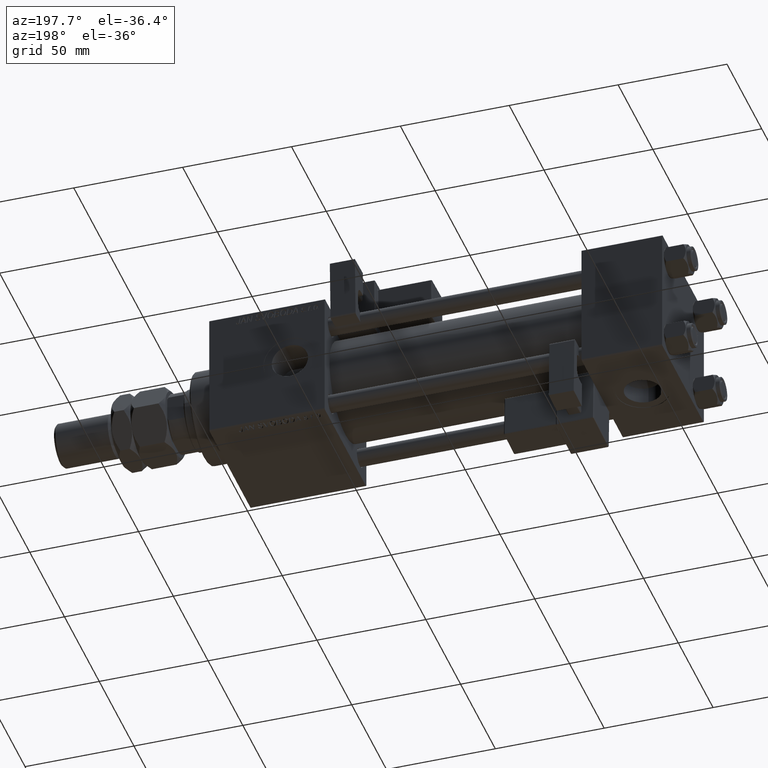
[diagram: clean part render]
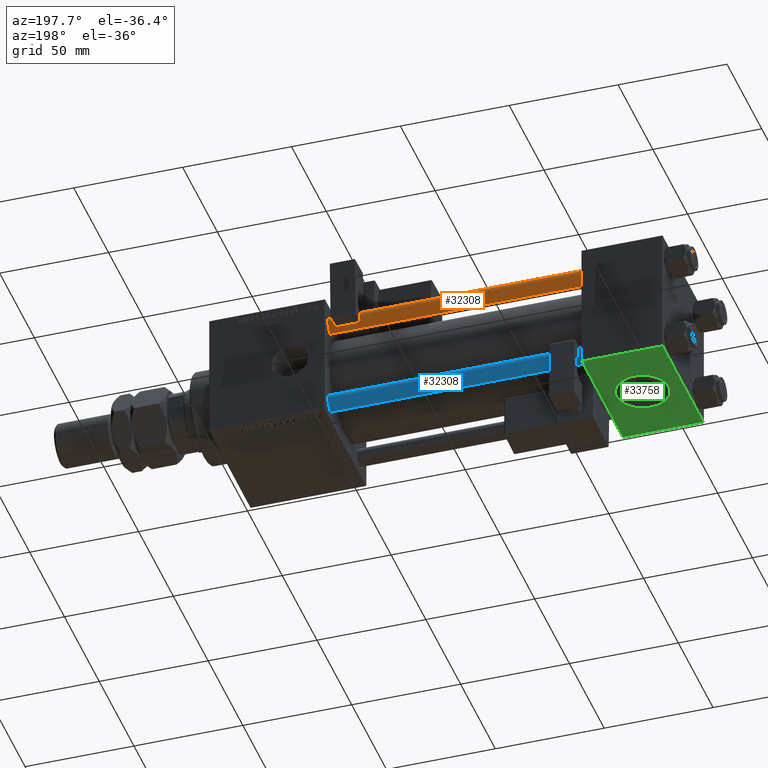
[diagram: same view with three faces highlighted in distinct colors, each labeled with its STEP entity id]
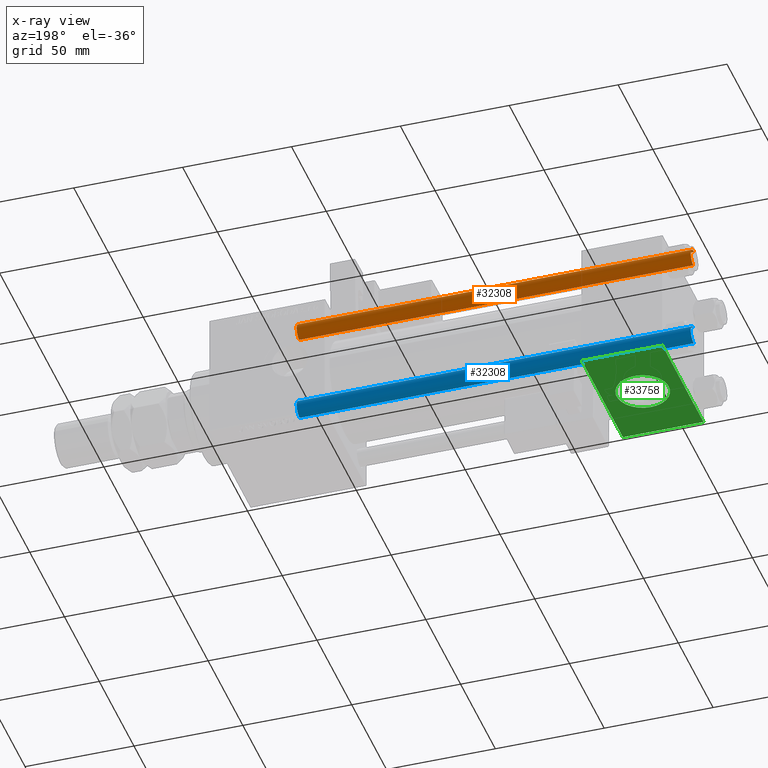
[diagram: x-ray of the same camera — body ghosted, the three highlighted faces saturated]
A machine part, auxiliary view with three faces highlighted in distinct colors.
The next image is the same camera in x-ray (body ghosted, the three faces saturated) — at least one of them is partly hidden behind the body in this view.
Their STEP definitions:

[orange] entity #32308 — the highlighted cylindrical surface (edge-blend (fillet) strip) has radius 4 mm, axis along (-1, 0, 0).
#306 = EDGE_CURVE ( 'NONE', #536, #24962, #49827, .T. ) ;
#536 = VERTEX_POINT ( 'NONE', #34840 ) ;
#3384 = DIRECTION ( 'NONE',  ( 1.000000000000000000, 0.000000000000000000, 0.000000000000000000 ) ) ;
#7775 = CIRCLE ( 'NONE', #46541, 4.000000000000000000 ) ;
#9680 = DIRECTION ( 'NONE',  ( -1.000000000000000000, 0.000000000000000000, 0.000000000000000000 ) ) ;
#10736 = CIRCLE ( 'NONE', #44079, 4.000000000000000000 ) ;
#13102 = DIRECTION ( 'NONE',  ( -0.000000000000000000, -0.000000000000000000, 1.000000000000000000 ) ) ;
#15064 = VERTEX_POINT ( 'NONE', #26403 ) ;
#16174 = EDGE_LOOP ( 'NONE', ( #26936, #31200, #36035, #23602 ) ) ;
#16819 = EDGE_CURVE ( 'NONE', #24962, #42858, #10736, .T. ) ;
#23602 = ORIENTED_EDGE ( 'NONE', *, *, #50609, .F. ) ;
#24412 = CARTESIAN_POINT ( 'NONE',  ( -4.000000000000000000, 0.000000000000000000, 0.4999999999999726885 ) ) ;
#24962 = VERTEX_POINT ( 'NONE', #35350 ) ;
#26403 = CARTESIAN_POINT ( 'NONE',  ( -4.000000000000000000, 0.000000000000000000, 181.5000000000000284 ) ) ;
#26655 = DIRECTION ( 'NONE',  ( 1.000000000000000000, 0.000000000000000000, 0.000000000000000000 ) ) ;
#26936 = ORIENTED_EDGE ( 'NONE', *, *, #49694, .T. ) ;
#29621 = DIRECTION ( 'NONE',  ( 0.000000000000000000, 0.000000000000000000, -1.000000000000000000 ) ) ;
#29630 = LINE ( 'NONE', #46284, #50199 ) ;
#30570 = FACE_OUTER_BOUND ( 'NONE', #16174, .T. ) ;
#31200 = ORIENTED_EDGE ( 'NONE', *, *, #306, .T. ) ;
#32308 = ADVANCED_FACE ( 'NONE', ( #30570 ), #44108, .T. ) ;
#34840 = CARTESIAN_POINT ( 'NONE',  ( 4.000000000000000000, 4.898587196589412829E-16, 181.5000000000000284 ) ) ;
#35350 = CARTESIAN_POINT ( 'NONE',  ( 4.000000000000000000, 4.898587196589412829E-16, 0.4999999999999726885 ) ) ;
#35390 = CARTESIAN_POINT ( 'NONE',  ( 0.000000000000000000, 0.000000000000000000, 0.4999999999999726885 ) ) ;
#36035 = ORIENTED_EDGE ( 'NONE', *, *, #16819, .T. ) ;
#39318 = DIRECTION ( 'NONE',  ( -0.000000000000000000, -0.000000000000000000, -1.000000000000000000 ) ) ;
#42606 = DIRECTION ( 'NONE',  ( -0.000000000000000000, -0.000000000000000000, -1.000000000000000000 ) ) ;
#42858 = VERTEX_POINT ( 'NONE', #24412 ) ;
#43000 = CARTESIAN_POINT ( 'NONE',  ( 0.000000000000000000, 0.000000000000000000, 182.0000000000000000 ) ) ;
#44079 = AXIS2_PLACEMENT_3D ( 'NONE', #35390, #13102, #26655 ) ;
#44108 = CYLINDRICAL_SURFACE ( 'NONE', #45500, 4.000000000000000000 ) ;
#45500 = AXIS2_PLACEMENT_3D ( 'NONE', #43000, #39318, #9680 ) ;
#45618 = CARTESIAN_POINT ( 'NONE',  ( 4.000000000000000000, 4.898587196589412829E-16, 182.0000000000000000 ) ) ;
#46008 = CARTESIAN_POINT ( 'NONE',  ( 0.000000000000000000, 0.000000000000000000, 181.5000000000000284 ) ) ;
#46284 = CARTESIAN_POINT ( 'NONE',  ( -4.000000000000000000, 0.000000000000000000, 182.0000000000000000 ) ) ;
#46541 = AXIS2_PLACEMENT_3D ( 'NONE', #46008, #29621, #3384 ) ;
#49694 = EDGE_CURVE ( 'NONE', #15064, #536, #7775, .T. ) ;
#49827 = LINE ( 'NONE', #45618, #50567 ) ;
#50199 = VECTOR ( 'NONE', #42606, 1000.000000000000000 ) ;
#50567 = VECTOR ( 'NONE', #50918, 1000.000000000000000 ) ;
#50609 = EDGE_CURVE ( 'NONE', #15064, #42858, #29630, .T. ) ;
#50918 = DIRECTION ( 'NONE',  ( -0.000000000000000000, -0.000000000000000000, -1.000000000000000000 ) ) ;

[blue] entity #32308 — the highlighted cylindrical surface (edge-blend (fillet) strip) has radius 4 mm, axis along (1, -0, 0).
#306 = EDGE_CURVE ( 'NONE', #536, #24962, #49827, .T. ) ;
#536 = VERTEX_POINT ( 'NONE', #34840 ) ;
#3384 = DIRECTION ( 'NONE',  ( 1.000000000000000000, 0.000000000000000000, 0.000000000000000000 ) ) ;
#7775 = CIRCLE ( 'NONE', #46541, 4.000000000000000000 ) ;
#9680 = DIRECTION ( 'NONE',  ( -1.000000000000000000, 0.000000000000000000, 0.000000000000000000 ) ) ;
#10736 = CIRCLE ( 'NONE', #44079, 4.000000000000000000 ) ;
#13102 = DIRECTION ( 'NONE',  ( -0.000000000000000000, -0.000000000000000000, 1.000000000000000000 ) ) ;
#15064 = VERTEX_POINT ( 'NONE', #26403 ) ;
#16174 = EDGE_LOOP ( 'NONE', ( #26936, #31200, #36035, #23602 ) ) ;
#16819 = EDGE_CURVE ( 'NONE', #24962, #42858, #10736, .T. ) ;
#23602 = ORIENTED_EDGE ( 'NONE', *, *, #50609, .F. ) ;
#24412 = CARTESIAN_POINT ( 'NONE',  ( -4.000000000000000000, 0.000000000000000000, 0.4999999999999726885 ) ) ;
#24962 = VERTEX_POINT ( 'NONE', #35350 ) ;
#26403 = CARTESIAN_POINT ( 'NONE',  ( -4.000000000000000000, 0.000000000000000000, 181.5000000000000284 ) ) ;
#26655 = DIRECTION ( 'NONE',  ( 1.000000000000000000, 0.000000000000000000, 0.000000000000000000 ) ) ;
#26936 = ORIENTED_EDGE ( 'NONE', *, *, #49694, .T. ) ;
#29621 = DIRECTION ( 'NONE',  ( 0.000000000000000000, 0.000000000000000000, -1.000000000000000000 ) ) ;
#29630 = LINE ( 'NONE', #46284, #50199 ) ;
#30570 = FACE_OUTER_BOUND ( 'NONE', #16174, .T. ) ;
#31200 = ORIENTED_EDGE ( 'NONE', *, *, #306, .T. ) ;
#32308 = ADVANCED_FACE ( 'NONE', ( #30570 ), #44108, .T. ) ;
#34840 = CARTESIAN_POINT ( 'NONE',  ( 4.000000000000000000, 4.898587196589412829E-16, 181.5000000000000284 ) ) ;
#35350 = CARTESIAN_POINT ( 'NONE',  ( 4.000000000000000000, 4.898587196589412829E-16, 0.4999999999999726885 ) ) ;
#35390 = CARTESIAN_POINT ( 'NONE',  ( 0.000000000000000000, 0.000000000000000000, 0.4999999999999726885 ) ) ;
#36035 = ORIENTED_EDGE ( 'NONE', *, *, #16819, .T. ) ;
#39318 = DIRECTION ( 'NONE',  ( -0.000000000000000000, -0.000000000000000000, -1.000000000000000000 ) ) ;
#42606 = DIRECTION ( 'NONE',  ( -0.000000000000000000, -0.000000000000000000, -1.000000000000000000 ) ) ;
#42858 = VERTEX_POINT ( 'NONE', #24412 ) ;
#43000 = CARTESIAN_POINT ( 'NONE',  ( 0.000000000000000000, 0.000000000000000000, 182.0000000000000000 ) ) ;
#44079 = AXIS2_PLACEMENT_3D ( 'NONE', #35390, #13102, #26655 ) ;
#44108 = CYLINDRICAL_SURFACE ( 'NONE', #45500, 4.000000000000000000 ) ;
#45500 = AXIS2_PLACEMENT_3D ( 'NONE', #43000, #39318, #9680 ) ;
#45618 = CARTESIAN_POINT ( 'NONE',  ( 4.000000000000000000, 4.898587196589412829E-16, 182.0000000000000000 ) ) ;
#46008 = CARTESIAN_POINT ( 'NONE',  ( 0.000000000000000000, 0.000000000000000000, 181.5000000000000284 ) ) ;
#46284 = CARTESIAN_POINT ( 'NONE',  ( -4.000000000000000000, 0.000000000000000000, 182.0000000000000000 ) ) ;
#46541 = AXIS2_PLACEMENT_3D ( 'NONE', #46008, #29621, #3384 ) ;
#49694 = EDGE_CURVE ( 'NONE', #15064, #536, #7775, .T. ) ;
#49827 = LINE ( 'NONE', #45618, #50567 ) ;
#50199 = VECTOR ( 'NONE', #42606, 1000.000000000000000 ) ;
#50567 = VECTOR ( 'NONE', #50918, 1000.000000000000000 ) ;
#50609 = EDGE_CURVE ( 'NONE', #15064, #42858, #29630, .T. ) ;
#50918 = DIRECTION ( 'NONE',  ( -0.000000000000000000, -0.000000000000000000, -1.000000000000000000 ) ) ;

[green] entity #33758 — the highlighted planar face has unit normal (0, 0, -1).
#1015 = PLANE ( 'NONE',  #5874 ) ;
#3038 = AXIS2_PLACEMENT_3D ( 'NONE', #25651, #34106, #4739 ) ;
#4739 = DIRECTION ( 'NONE',  ( 0.000000000000000000, 1.000000000000000000, -2.891205793294677833E-16 ) ) ;
#5211 = EDGE_CURVE ( 'NONE', #14071, #21518, #35012, .T. ) ;
#5874 = AXIS2_PLACEMENT_3D ( 'NONE', #27546, #53185, #30177 ) ;
#6150 = LINE ( 'NONE', #40594, #41037 ) ;
#7998 = LINE ( 'NONE', #54834, #20331 ) ;
#8109 = VERTEX_POINT ( 'NONE', #10371 ) ;
#9593 = EDGE_CURVE ( 'NONE', #15480, #47774, #26519, .T. ) ;
#10371 = CARTESIAN_POINT ( 'NONE',  ( 0.000000000000000000, 29.49999999999997868, -30.00000000000000000 ) ) ;
#13263 = ORIENTED_EDGE ( 'NONE', *, *, #42870, .T. ) ;
#14071 = VERTEX_POINT ( 'NONE', #14569 ) ;
#14569 = CARTESIAN_POINT ( 'NONE',  ( 37.00000000000000000, -29.50000000000000000, -30.00000000000000711 ) ) ;
#15480 = VERTEX_POINT ( 'NONE', #24341 ) ;
#16746 = DIRECTION ( 'NONE',  ( 0.000000000000000000, -1.000000000000000000, -1.156482317317871725E-16 ) ) ;
#16909 = EDGE_LOOP ( 'NONE', ( #24805, #45479 ) ) ;
#17429 = CIRCLE ( 'NONE', #3038, 12.00000000000000178 ) ;
#19971 = VERTEX_POINT ( 'NONE', #23751 ) ;
#20256 = DIRECTION ( 'NONE',  ( 0.000000000000000000, -1.734723475976806848E-16, -1.000000000000000000 ) ) ;
#20331 = VECTOR ( 'NONE', #16746, 1000.000000000000000 ) ;
#21518 = VERTEX_POINT ( 'NONE', #46178 ) ;
#23751 = CARTESIAN_POINT ( 'NONE',  ( 37.00000000000000000, 29.49999999999997868, -30.00000000000000000 ) ) ;
#23838 = AXIS2_PLACEMENT_3D ( 'NONE', #41158, #20256, #37481 ) ;
#24341 = CARTESIAN_POINT ( 'NONE',  ( 18.50000000000000355, 12.00000000000000355, -30.00000000000000711 ) ) ;
#24805 = ORIENTED_EDGE ( 'NONE', *, *, #9593, .F. ) ;
#25651 = CARTESIAN_POINT ( 'NONE',  ( 18.50000000000000355, 2.265018109976774967E-15, -30.00000000000000355 ) ) ;
#26519 = CIRCLE ( 'NONE', #23838, 12.00000000000000178 ) ;
#26671 = LINE ( 'NONE', #51750, #47979 ) ;
#27546 = CARTESIAN_POINT ( 'NONE',  ( 37.00000000000000000, 29.99999999999999289, -30.00000000000000000 ) ) ;
#28054 = EDGE_CURVE ( 'NONE', #8109, #21518, #26671, .T. ) ;
#30104 = EDGE_CURVE ( 'NONE', #47774, #15480, #17429, .T. ) ;
#30177 = DIRECTION ( 'NONE',  ( 0.000000000000000000, 1.000000000000000000, 1.156482317317871725E-16 ) ) ;
#31558 = EDGE_LOOP ( 'NONE', ( #42127, #47514, #13263, #55017 ) ) ;
#31836 = DIRECTION ( 'NONE',  ( 1.000000000000000000, 0.000000000000000000, 0.000000000000000000 ) ) ;
#33758 = ADVANCED_FACE ( 'NONE', ( #44759, #47387 ), #1015, .T. ) ;
#34106 = DIRECTION ( 'NONE',  ( 0.000000000000000000, -1.734723475976806848E-16, -1.000000000000000000 ) ) ;
#35012 = LINE ( 'NONE', #52194, #52439 ) ;
#37481 = DIRECTION ( 'NONE',  ( 0.000000000000000000, 1.000000000000000000, -2.891205793294677833E-16 ) ) ;
#39524 = DIRECTION ( 'NONE',  ( -1.000000000000000000, 0.000000000000000000, 0.000000000000000000 ) ) ;
#40594 = CARTESIAN_POINT ( 'NONE',  ( 37.00000000000000000, 29.49999999999997868, -30.00000000000000000 ) ) ;
#41037 = VECTOR ( 'NONE', #31836, 1000.000000000000000 ) ;
#41158 = CARTESIAN_POINT ( 'NONE',  ( 18.50000000000000355, 2.265018109976774967E-15, -30.00000000000000355 ) ) ;
#42127 = ORIENTED_EDGE ( 'NONE', *, *, #28054, .F. ) ;
#42870 = EDGE_CURVE ( 'NONE', #19971, #14071, #7998, .T. ) ;
#43498 = CARTESIAN_POINT ( 'NONE',  ( 18.50000000000000355, -12.00000000000000000, -30.00000000000000000 ) ) ;
#43881 = DIRECTION ( 'NONE',  ( 0.000000000000000000, -1.000000000000000000, -1.156482317317871725E-16 ) ) ;
#44759 = FACE_BOUND ( 'NONE', #16909, .T. ) ;
#45479 = ORIENTED_EDGE ( 'NONE', *, *, #30104, .F. ) ;
#46178 = CARTESIAN_POINT ( 'NONE',  ( 0.000000000000000000, -29.50000000000000000, -30.00000000000000711 ) ) ;
#46926 = EDGE_CURVE ( 'NONE', #8109, #19971, #6150, .T. ) ;
#47387 = FACE_OUTER_BOUND ( 'NONE', #31558, .T. ) ;
#47514 = ORIENTED_EDGE ( 'NONE', *, *, #46926, .T. ) ;
#47774 = VERTEX_POINT ( 'NONE', #43498 ) ;
#47979 = VECTOR ( 'NONE', #43881, 1000.000000000000000 ) ;
#51750 = CARTESIAN_POINT ( 'NONE',  ( 0.000000000000000000, 29.99999999999999289, -30.00000000000000000 ) ) ;
#52194 = CARTESIAN_POINT ( 'NONE',  ( 0.000000000000000000, -29.50000000000001066, -30.00000000000000711 ) ) ;
#52439 = VECTOR ( 'NONE', #39524, 1000.000000000000000 ) ;
#53185 = DIRECTION ( 'NONE',  ( 0.000000000000000000, 1.156482317317871725E-16, -1.000000000000000000 ) ) ;
#54834 = CARTESIAN_POINT ( 'NONE',  ( 37.00000000000000000, 29.99999999999999289, -30.00000000000000000 ) ) ;
#55017 = ORIENTED_EDGE ( 'NONE', *, *, #5211, .T. ) ;